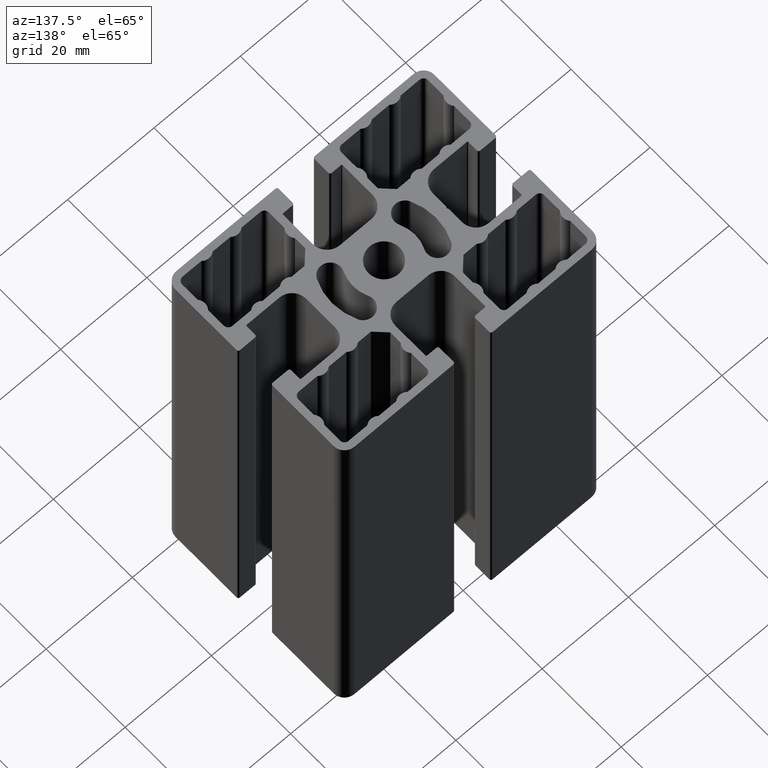
[diagram: clean part render]
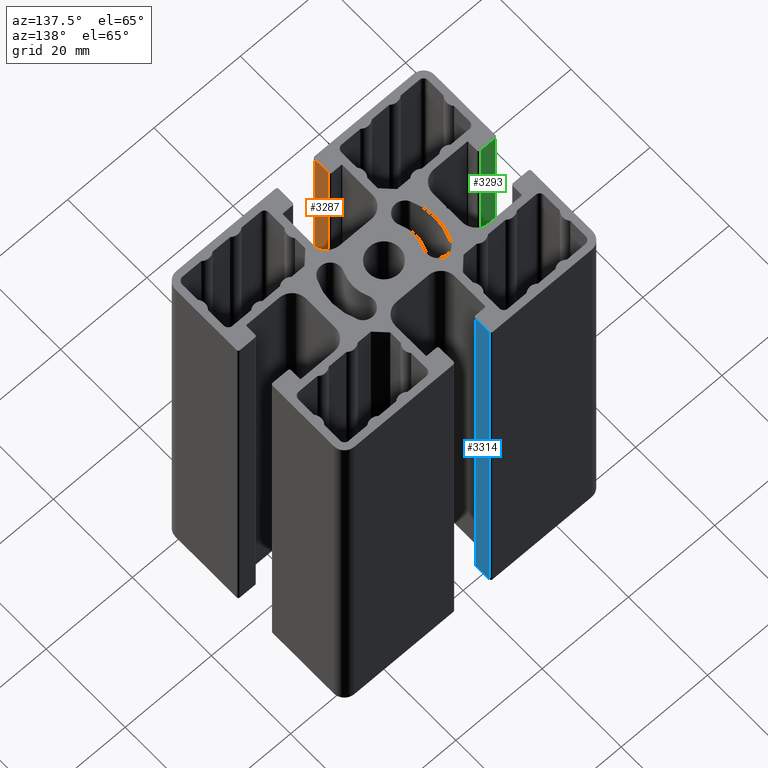
[diagram: same view with three faces highlighted in distinct colors, each labeled with its STEP entity id]
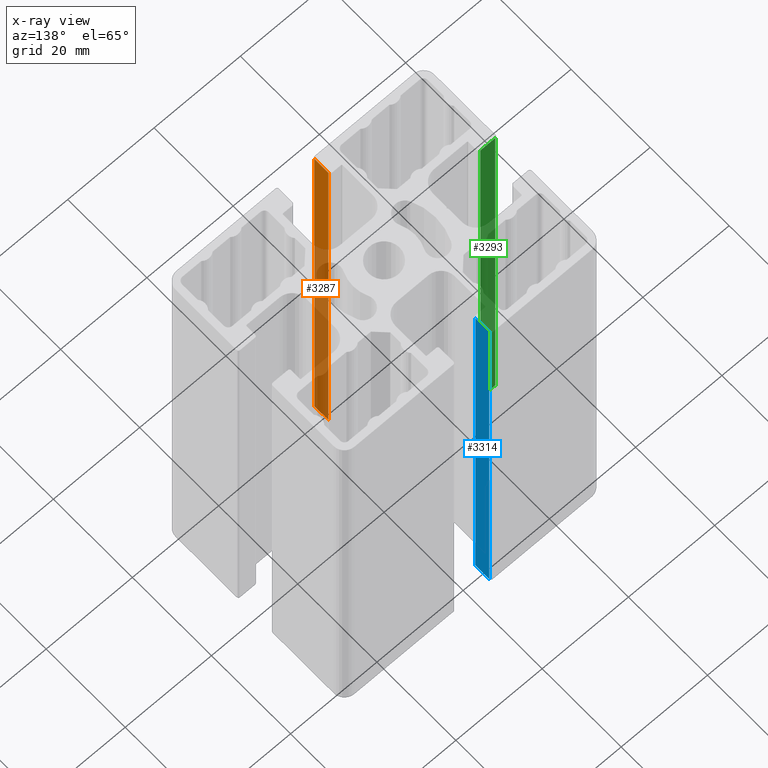
[diagram: x-ray of the same camera — body ghosted, the three highlighted faces saturated]
A machine part, auxiliary view with three faces highlighted in distinct colors.
The next image is the same camera in x-ray (body ghosted, the three faces saturated) — at least one of them is partly hidden behind the body in this view.
Their STEP definitions:

[orange] entity #3287 — the highlighted planar face has unit normal (1, 0, 0).
#91=PLANE('',#3579);
#238=FACE_OUTER_BOUND('',#405,.T.);
#405=EDGE_LOOP('',(#2591,#2592,#2593,#2594));
#706=LINE('',#5387,#1035);
#707=LINE('',#5390,#1036);
#708=LINE('',#5392,#1037);
#709=LINE('',#5393,#1038);
#1035=VECTOR('',#4400,100.);
#1036=VECTOR('',#4403,3.49999999643046);
#1037=VECTOR('',#4404,3.49999999643046);
#1038=VECTOR('',#4405,100.);
#1528=VERTEX_POINT('',#5383);
#1529=VERTEX_POINT('',#5385);
#1530=VERTEX_POINT('',#5389);
#1531=VERTEX_POINT('',#5391);
#1978=EDGE_CURVE('',#1528,#1529,#706,.T.);
#1979=EDGE_CURVE('',#1530,#1528,#707,.T.);
#1980=EDGE_CURVE('',#1531,#1529,#708,.T.);
#1981=EDGE_CURVE('',#1530,#1531,#709,.T.);
#2591=ORIENTED_EDGE('',*,*,#1979,.T.);
#2592=ORIENTED_EDGE('',*,*,#1978,.T.);
#2593=ORIENTED_EDGE('',*,*,#1980,.F.);
#2594=ORIENTED_EDGE('',*,*,#1981,.F.);
#3287=ADVANCED_FACE('',(#238),#91,.T.);
#3579=AXIS2_PLACEMENT_3D('',#5388,#4401,#4402);
#4400=DIRECTION('',(0.,0.,1.));
#4401=DIRECTION('center_axis',(1.,0.,0.));
#4402=DIRECTION('ref_axis',(0.,1.,0.));
#4403=DIRECTION('',(0.,1.,0.));
#4404=DIRECTION('',(0.,1.,0.));
#4405=DIRECTION('',(0.,0.,1.));
#5383=CARTESIAN_POINT('',(-4.14999999576708,-18.5999999810275,0.));
#5385=CARTESIAN_POINT('',(-4.14999999576708,-18.5999999810275,100.));
#5387=CARTESIAN_POINT('',(-4.14999999576708,-18.5999999810275,0.));
#5388=CARTESIAN_POINT('Origin',(-4.14999999576708,-22.099999977458,0.));
#5389=CARTESIAN_POINT('',(-4.14999999576708,-22.099999977458,0.));
#5390=CARTESIAN_POINT('',(-4.14999999576708,-22.099999977458,0.));
#5391=CARTESIAN_POINT('',(-4.14999999576708,-22.099999977458,100.));
#5392=CARTESIAN_POINT('',(-4.14999999576708,-22.099999977458,100.));
#5393=CARTESIAN_POINT('',(-4.14999999576708,-22.099999977458,0.));

[blue] entity #3314 — the highlighted planar face has unit normal (1, -0, 0).
#106=PLANE('',#3630);
#265=FACE_OUTER_BOUND('',#432,.T.);
#432=EDGE_LOOP('',(#2699,#2700,#2701,#2702));
#763=LINE('',#5549,#1092);
#764=LINE('',#5552,#1093);
#765=LINE('',#5554,#1094);
#766=LINE('',#5555,#1095);
#1092=VECTOR('',#4559,100.);
#1093=VECTOR('',#4562,3.49999999642989);
#1094=VECTOR('',#4563,3.49999999642989);
#1095=VECTOR('',#4564,100.);
#1582=VERTEX_POINT('',#5545);
#1583=VERTEX_POINT('',#5547);
#1584=VERTEX_POINT('',#5551);
#1585=VERTEX_POINT('',#5553);
#2059=EDGE_CURVE('',#1582,#1583,#763,.T.);
#2060=EDGE_CURVE('',#1584,#1582,#764,.T.);
#2061=EDGE_CURVE('',#1585,#1583,#765,.T.);
#2062=EDGE_CURVE('',#1584,#1585,#766,.T.);
#2699=ORIENTED_EDGE('',*,*,#2060,.T.);
#2700=ORIENTED_EDGE('',*,*,#2059,.T.);
#2701=ORIENTED_EDGE('',*,*,#2061,.F.);
#2702=ORIENTED_EDGE('',*,*,#2062,.F.);
#3314=ADVANCED_FACE('',(#265),#106,.T.);
#3630=AXIS2_PLACEMENT_3D('',#5550,#4560,#4561);
#4559=DIRECTION('',(0.,0.,1.));
#4560=DIRECTION('center_axis',(1.,-8.12048841697001E-14,0.));
#4561=DIRECTION('ref_axis',(8.11795075605915E-14,1.,0.));
#4562=DIRECTION('',(8.12048841697001E-14,1.,0.));
#4563=DIRECTION('',(8.12048841697001E-14,1.,0.));
#4564=DIRECTION('',(0.,0.,1.));
#5545=CARTESIAN_POINT('',(-4.14999999576679,22.099999977458,0.));
#5547=CARTESIAN_POINT('',(-4.14999999576679,22.099999977458,100.));
#5549=CARTESIAN_POINT('',(-4.14999999576679,22.099999977458,0.));
#5550=CARTESIAN_POINT('Origin',(-4.14999999576708,18.5999999810281,0.));
#5551=CARTESIAN_POINT('',(-4.14999999576708,18.5999999810281,0.));
#5552=CARTESIAN_POINT('',(-4.14999999576708,18.5999999810281,0.));
#5553=CARTESIAN_POINT('',(-4.14999999576708,18.5999999810281,100.));
#5554=CARTESIAN_POINT('',(-4.14999999576708,18.5999999810281,100.));
#5555=CARTESIAN_POINT('',(-4.14999999576708,18.5999999810281,0.));

[green] entity #3293 — the highlighted planar face has unit normal (0, 1, 0).
#94=PLANE('',#3591);
#244=FACE_OUTER_BOUND('',#411,.T.);
#411=EDGE_LOOP('',(#2615,#2616,#2617,#2618));
#718=LINE('',#5423,#1047);
#719=LINE('',#5426,#1048);
#720=LINE('',#5428,#1049);
#721=LINE('',#5429,#1050);
#1047=VECTOR('',#4436,100.);
#1048=VECTOR('',#4439,3.49999999643018);
#1049=VECTOR('',#4440,3.49999999643018);
#1050=VECTOR('',#4441,100.);
#1540=VERTEX_POINT('',#5419);
#1541=VERTEX_POINT('',#5421);
#1542=VERTEX_POINT('',#5425);
#1543=VERTEX_POINT('',#5427);
#1996=EDGE_CURVE('',#1540,#1541,#718,.T.);
#1997=EDGE_CURVE('',#1542,#1540,#719,.T.);
#1998=EDGE_CURVE('',#1543,#1541,#720,.T.);
#1999=EDGE_CURVE('',#1542,#1543,#721,.T.);
#2615=ORIENTED_EDGE('',*,*,#1997,.T.);
#2616=ORIENTED_EDGE('',*,*,#1996,.T.);
#2617=ORIENTED_EDGE('',*,*,#1998,.F.);
#2618=ORIENTED_EDGE('',*,*,#1999,.F.);
#3293=ADVANCED_FACE('',(#244),#94,.T.);
#3591=AXIS2_PLACEMENT_3D('',#5424,#4437,#4438);
#4436=DIRECTION('',(0.,0.,1.));
#4437=DIRECTION('center_axis',(0.,1.,0.));
#4438=DIRECTION('ref_axis',(-1.,0.,0.));
#4439=DIRECTION('',(-1.,0.,0.));
#4440=DIRECTION('',(-1.,0.,0.));
#4441=DIRECTION('',(0.,0.,1.));
#5419=CARTESIAN_POINT('',(-29.599999969808,-4.14999999576708,0.));
#5421=CARTESIAN_POINT('',(-29.599999969808,-4.14999999576708,100.));
#5423=CARTESIAN_POINT('',(-29.599999969808,-4.14999999576708,0.));
#5424=CARTESIAN_POINT('Origin',(-26.0999999733778,-4.14999999576708,0.));
#5425=CARTESIAN_POINT('',(-26.0999999733778,-4.14999999576708,0.));
#5426=CARTESIAN_POINT('',(-26.0999999733778,-4.14999999576708,0.));
#5427=CARTESIAN_POINT('',(-26.0999999733778,-4.14999999576708,100.));
#5428=CARTESIAN_POINT('',(-26.0999999733778,-4.14999999576708,100.));
#5429=CARTESIAN_POINT('',(-26.0999999733778,-4.14999999576708,0.));